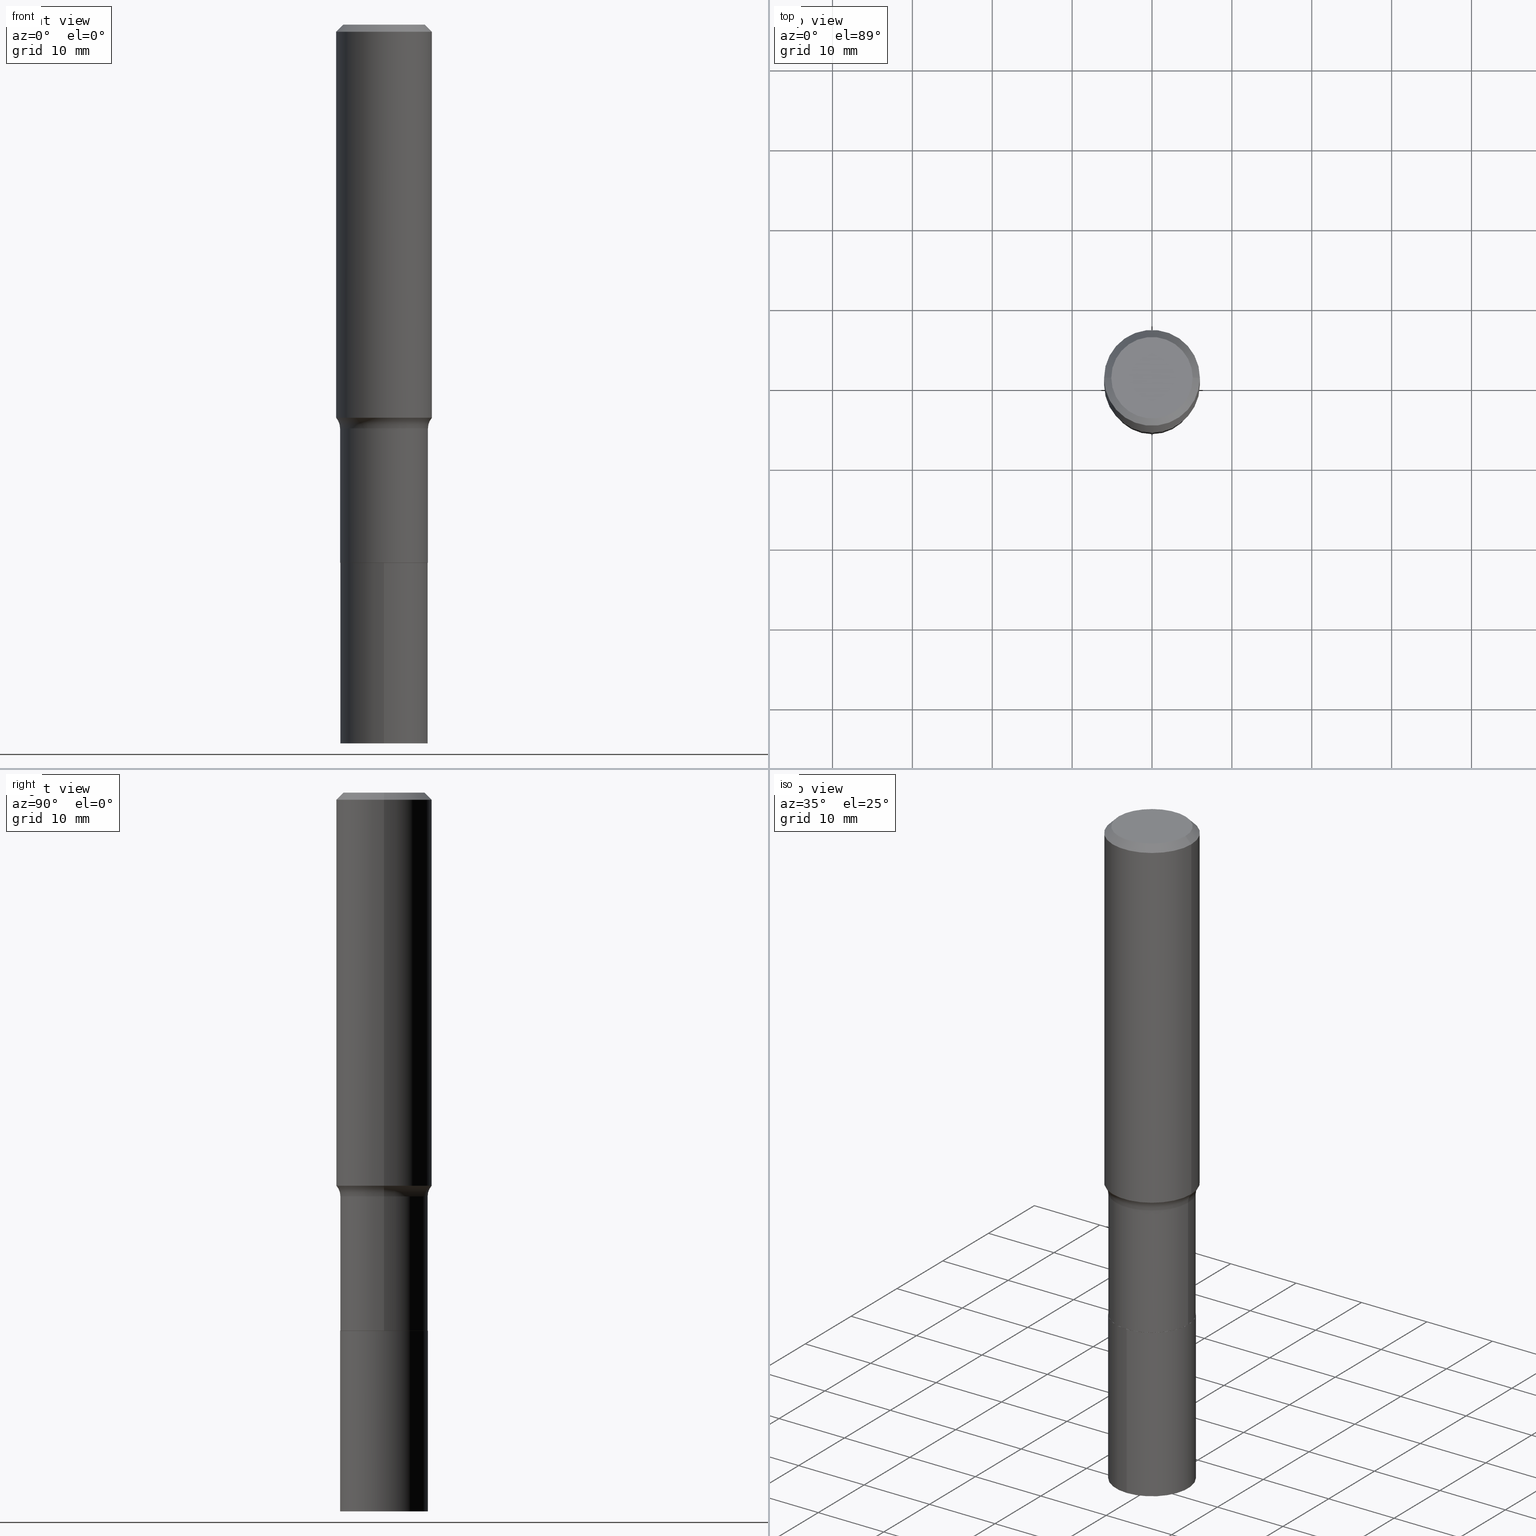
[diagram: canonical four-view strip — front | top / right | iso, engineering-drawing reading convention]
A machine part, canonical four-view strip (front | top / right | iso — engineering-drawing reading convention). The complete STEP part file that produces these views, byte-faithful:
ISO-10303-21;
HEADER;
FILE_DESCRIPTION (( 'STEP AP203' ),
    '1' );
FILE_NAME ('67157.STEP',
    '2024-04-19T16:02:56',
    ( '' ),
    ( '' ),
    'SwSTEP 2.0',
    'SolidWorks 2023',
    '' );
FILE_SCHEMA (( 'CONFIG_CONTROL_DESIGN' ));
ENDSEC;

DATA;
#1 = DIRECTION ( 'NONE',  ( 1.000000000000000000, -6.982962677686266711E-15, 0.000000000000000000 ) ) ;
#2 = AXIS2_PLACEMENT_3D ( 'NONE', #4, #437, #74 ) ;
#3 = EDGE_LOOP ( 'NONE', ( #173, #127, #380, #137 ) ) ;
#4 = CARTESIAN_POINT ( 'NONE',  ( 6.488562383451022229E-29, -9.263947436352516081E-15, -2.653299999999999770 ) ) ;
#5 = ORIENTED_EDGE ( 'NONE', *, *, #284, .T. ) ;
#6 = ORIENTED_EDGE ( 'NONE', *, *, #329, .F. ) ;
#7 = EDGE_CURVE ( 'NONE', #85, #196, #425, .T. ) ;
#8 = CARTESIAN_POINT ( 'NONE',  ( 1.538680294288561586E-15, 0.2165499999999907499, -2.653300000000000214 ) ) ;
#9 = AXIS2_PLACEMENT_3D ( 'NONE', #335, #263, #64 ) ;
#10 = ORIENTED_EDGE ( 'NONE', *, *, #416, .T. ) ;
#11 = DIRECTION ( 'NONE',  ( -2.445468806185136597E-29, 3.491481338843145583E-15, 1.000000000000000000 ) ) ;
#12 = EDGE_LOOP ( 'NONE', ( #88, #283, #280, #40 ) ) ;
#13 = CARTESIAN_POINT ( 'NONE',  ( 6.488562383451022229E-29, -9.263947436352516081E-15, -2.653299999999999770 ) ) ;
#14 = AXIS2_PLACEMENT_3D ( 'NONE', #256, #222, #370 ) ;
#15 = EDGE_CURVE ( 'NONE', #80, #82, #37, .T. ) ;
#16 = ORIENTED_EDGE ( 'NONE', *, *, #172, .T. ) ;
#17 = APPROVAL ( #324, 'UNSPECIFIED' ) ;
#18 = DIRECTION ( 'NONE',  ( -1.000000000000000000, 7.105427357601001859E-15, 0.000000000000000000 ) ) ;
#19 = VERTEX_POINT ( 'NONE', #170 ) ;
#20 = ADVANCED_FACE ( 'NONE', ( #247 ), #93, .T. ) ;
#21 = AXIS2_PLACEMENT_3D ( 'NONE', #332, #150, #24 ) ;
#22 = AXIS2_PLACEMENT_3D ( 'NONE', #266, #228, #132 ) ;
#23 = SECURITY_CLASSIFICATION_LEVEL ( 'unclassified' ) ;
#24 = DIRECTION ( 'NONE',  ( 1.000000000000000000, -6.982962677686266711E-15, 4.876176775795935793E-29 ) ) ;
#25 = DIRECTION ( 'NONE',  ( 2.445468806185136597E-29, -3.491481338843145583E-15, -1.000000000000000000 ) ) ;
#26 = ADVANCED_FACE ( 'NONE', ( #387 ), #177, .F. ) ;
#27 = CARTESIAN_POINT ( 'NONE',  ( -0.2165500000000000203, 1.538680294288497096E-15, -1.065195393794699923E-29 ) ) ;
#28 = VECTOR ( 'NONE', #311, 39.37007874015748143 ) ;
#29 = CC_DESIGN_SECURITY_CLASSIFICATION ( #61, ( #420 ) ) ;
#30 = DIRECTION ( 'NONE',  ( 1.000000000000000000, -6.982962677686268288E-15, 4.883557194083114022E-29 ) ) ;
#31 = CYLINDRICAL_SURFACE ( 'NONE', #371, 0.2165500000000000203 ) ;
#32 = LINE ( 'NONE', #369, #408 ) ;
#33 = CARTESIAN_POINT ( 'NONE',  ( 6.488562383451022229E-29, -9.263947436352516081E-15, -2.653299999999999770 ) ) ;
#34 = DATE_AND_TIME ( #295, #162 ) ;
#35 = DIRECTION ( 'NONE',  ( 1.000000000000000000, -6.982962677686265922E-15, 0.000000000000000000 ) ) ;
#36 = ADVANCED_FACE ( 'NONE', ( #48 ), #382, .T. ) ;
#37 = CIRCLE ( 'NONE', #102, 0.2160500000000000198 ) ;
#38 = AXIS2_PLACEMENT_3D ( 'NONE', #224, #330, #359 ) ;
#39 = LOCAL_TIME ( 12, 2, 56.00000000000000000, #138 ) ;
#40 = ORIENTED_EDGE ( 'NONE', *, *, #348, .F. ) ;
#41 = ORIENTED_EDGE ( 'NONE', *, *, #166, .T. ) ;
#42 = EDGE_CURVE ( 'NONE', #340, #413, #364, .T. ) ;
#43 = ORIENTED_EDGE ( 'NONE', *, *, #166, .F. ) ;
#44 = DATE_AND_TIME ( #277, #323 ) ;
#45 = ORIENTED_EDGE ( 'NONE', *, *, #303, .F. ) ;
#46 = CIRCLE ( 'NONE', #205, 0.2007700000000000040 ) ;
#47 = CARTESIAN_POINT ( 'NONE',  ( 0.2160500000000000198, -1.077261652286663390E-14, -2.653299999999999770 ) ) ;
#48 = FACE_OUTER_BOUND ( 'NONE', #200, .T. ) ;
#49 = EDGE_LOOP ( 'NONE', ( #292, #422, #214, #57 ) ) ;
#50 = EDGE_CURVE ( 'NONE', #82, #209, #257, .T. ) ;
#51 = LENGTH_MEASURE_WITH_UNIT ( LENGTH_MEASURE( 0.02539999999999999897 ), #325 );
#52 = VERTEX_POINT ( 'NONE', #147 ) ;
#53 = VECTOR ( 'NONE', #339, 39.37007874015748143 ) ;
#54 =( CONVERSION_BASED_UNIT ( 'INCH', #51 ) LENGTH_UNIT ( ) NAMED_UNIT ( #76 ) );
#55 = ORIENTED_EDGE ( 'NONE', *, *, #248, .F. ) ;
#56 = PERSON_AND_ORGANIZATION ( #169, #403 ) ;
#57 = ORIENTED_EDGE ( 'NONE', *, *, #254, .F. ) ;
#58 = COORDINATED_UNIVERSAL_TIME_OFFSET ( 5, 0, .BEHIND. ) ;
#59 = CARTESIAN_POINT ( 'NONE',  ( 0.2165500000000000480, -1.077436226353605461E-14, -2.652799999999999603 ) ) ;
#60 = CIRCLE ( 'NONE', #135, 0.2165499999999999647 ) ;
#61 = SECURITY_CLASSIFICATION ( '', '', #23 ) ;
#62 = DIRECTION ( 'NONE',  ( -1.000000000000000000, 6.982962677686265922E-15, -4.876176775795935793E-29 ) ) ;
#63 = DIRECTION ( 'NONE',  ( 1.000000000000000000, -6.982962677686266711E-15, 0.000000000000000000 ) ) ;
#64 = DIRECTION ( 'NONE',  ( 1.000000000000000000, -6.982962677686263555E-15, 0.000000000000000000 ) ) ;
#65 = CC_DESIGN_PERSON_AND_ORGANIZATION_ASSIGNMENT ( #99, #418, ( #420 ) ) ;
#66 = DIRECTION ( 'NONE',  ( 2.438088387897960049E-29, -3.491481338843145188E-15, -1.000000000000000000 ) ) ;
#67 = AXIS2_PLACEMENT_3D ( 'NONE', #227, #186, #148 ) ;
#68 = CIRCLE ( 'NONE', #190, 0.2007700000000000040 ) ;
#69 = FACE_OUTER_BOUND ( 'NONE', #3, .T. ) ;
#70 = CARTESIAN_POINT ( 'NONE',  ( 0.2007700000000000040, -1.560767496960719869E-15, 4.096137381458473721E-18 ) ) ;
#71 = DIRECTION ( 'NONE',  ( 1.000000000000000000, -6.982962677686266711E-15, 4.876176775795935793E-29 ) ) ;
#72 = AXIS2_PLACEMENT_3D ( 'NONE', #252, #354, #415 ) ;
#73 = CIRCLE ( 'NONE', #9, 0.2165500000000000480 ) ;
#74 = DIRECTION ( 'NONE',  ( 6.982962677686265922E-15, 1.000000000000000000, -3.493862711942566670E-15 ) ) ;
#75 = ADVANCED_FACE ( 'NONE', ( #326 ), #358, .T. ) ;
#76 = DIMENSIONAL_EXPONENTS ( 1.000000000000000000, 0.000000000000000000, 0.000000000000000000, 0.000000000000000000, 0.000000000000000000, 0.000000000000000000, 0.000000000000000000 ) ;
#77 = CARTESIAN_POINT ( 'NONE',  ( -1.512160567852874245E-15, -0.2165500000000123715, -3.543299999999999894 ) ) ;
#78 = ORIENTED_EDGE ( 'NONE', *, *, #42, .F. ) ;
#79 = DIRECTION ( 'NONE',  ( -2.438088387897960049E-29, 3.491481338843145188E-15, 1.000000000000000000 ) ) ;
#80 = VERTEX_POINT ( 'NONE', #179 ) ;
#81 = CARTESIAN_POINT ( 'NONE',  ( -0.2362000000000001043, 1.678301941865357380E-15, -1.161852468318209317E-29 ) ) ;
#82 = VERTEX_POINT ( 'NONE', #142 ) ;
#83 = VECTOR ( 'NONE', #404, 39.37007874015748143 ) ;
#84 = EDGE_CURVE ( 'NONE', #82, #80, #89, .T. ) ;
#85 = VERTEX_POINT ( 'NONE', #262 ) ;
#86 = DIRECTION ( 'NONE',  ( -2.445468806185136597E-29, 3.491481338843145583E-15, 1.000000000000000000 ) ) ;
#87 = EDGE_LOOP ( 'NONE', ( #217, #381 ) ) ;
#88 = ORIENTED_EDGE ( 'NONE', *, *, #407, .F. ) ;
#89 = CIRCLE ( 'NONE', #440, 0.2160500000000000198 ) ;
#90 = APPROVAL_PERSON_ORGANIZATION ( #342, #105, #445 ) ;
#91 = EDGE_CURVE ( 'NONE', #85, #236, #243, .T. ) ;
#92 = PERSON_AND_ORGANIZATION ( #169, #403 ) ;
#93 = CYLINDRICAL_SURFACE ( 'NONE', #72, 0.2165500000000000203 ) ;
#94 = PRODUCT_RELATED_PRODUCT_CATEGORY ( 'detail', '', ( #151 ) ) ;
#95 = APPROVAL_ROLE ( '' ) ;
#96 = DIRECTION ( 'NONE',  ( -6.982962677686265922E-15, -1.000000000000000000, 3.493862711942566670E-15 ) ) ;
#97 = DIRECTION ( 'NONE',  ( -6.982962677686265133E-15, -1.000000000000000000, 2.523064413451178124E-15 ) ) ;
#98 =( NAMED_UNIT ( * ) SI_UNIT ( $, .STERADIAN. ) SOLID_ANGLE_UNIT ( ) );
#99 = PERSON_AND_ORGANIZATION ( #169, #403 ) ;
#100 = DIRECTION ( 'NONE',  ( -0.7071067811865451302, 2.468850131082231817E-15, -0.7071067811865499042 ) ) ;
#101 = DIRECTION ( 'NONE',  ( -2.445468806185136877E-29, 3.491481338843145188E-15, 1.000000000000000000 ) ) ;
#102 = AXIS2_PLACEMENT_3D ( 'NONE', #13, #453, #350 ) ;
#103 = CIRCLE ( 'NONE', #343, 0.2165500000000000480 ) ;
#104 = DIRECTION ( 'NONE',  ( -2.445468806185136597E-29, 3.491481338843145583E-15, 1.000000000000000000 ) ) ;
#105 = APPROVAL ( #164, 'UNSPECIFIED' ) ;
#106 = DIRECTION ( 'NONE',  ( 1.000000000000000000, -6.982962677686268288E-15, 4.883557194083114022E-29 ) ) ;
#107 = LINE ( 'NONE', #27, #287 ) ;
#108 = UNCERTAINTY_MEASURE_WITH_UNIT (LENGTH_MEASURE( 1.000000000000000082E-05 ), #54, 'distance_accuracy_value', 'NONE');
#109 = DIRECTION ( 'NONE',  ( -1.000000000000000000, 6.982962677686266711E-15, 0.000000000000000000 ) ) ;
#110 = DIRECTION ( 'NONE',  ( -2.445468806185136597E-29, 3.491481338843145583E-15, 1.000000000000000000 ) ) ;
#111 = DIRECTION ( 'NONE',  ( 2.445468806185136597E-29, -3.491481338843145583E-15, -1.000000000000000000 ) ) ;
#112 = DIRECTION ( 'NONE',  ( 0.7071067811865451302, -7.319954787623248157E-15, -0.7071067811865499042 ) ) ;
#113 = EDGE_CURVE ( 'NONE', #19, #156, #314, .T. ) ;
#114 = VECTOR ( 'NONE', #112, 39.37007874015748143 ) ;
#115 = AXIS2_PLACEMENT_3D ( 'NONE', #174, #356, #317 ) ;
#116 = CARTESIAN_POINT ( 'NONE',  ( 6.488562383451022229E-29, -9.263947436352516081E-15, -2.653299999999999770 ) ) ;
#117 = CC_DESIGN_DATE_AND_TIME_ASSIGNMENT ( #259, #226, ( #61 ) ) ;
#118 = AXIS2_PLACEMENT_3D ( 'NONE', #249, #315, #96 ) ;
#119 = CIRCLE ( 'NONE', #67, 0.2361999999999999933 ) ;
#120 = DIRECTION ( 'NONE',  ( -2.443805902237646551E-29, 3.493862711942566670E-15, 1.000000000000000000 ) ) ;
#121 = ORIENTED_EDGE ( 'NONE', *, *, #430, .T. ) ;
#122 = COORDINATED_UNIVERSAL_TIME_OFFSET ( 5, 0, .BEHIND. ) ;
#123 = CARTESIAN_POINT ( 'NONE',  ( 6.488562383451022229E-29, -9.263947436352516081E-15, -2.653299999999999770 ) ) ;
#124 = DIRECTION ( 'NONE',  ( -2.445468806185136877E-29, 3.491481338843145188E-15, 1.000000000000000000 ) ) ;
#125 = EDGE_LOOP ( 'NONE', ( #409, #310, #316, #312 ) ) ;
#126 = EDGE_CURVE ( 'NONE', #85, #19, #346, .T. ) ;
#127 = ORIENTED_EDGE ( 'NONE', *, *, #131, .F. ) ;
#128 = CIRCLE ( 'NONE', #171, 0.2165499999999999647 ) ;
#129 = CARTESIAN_POINT ( 'NONE',  ( -0.2965499999999999248, -4.841980825802936246E-15, -1.990299999999999736 ) ) ;
#130 = ORIENTED_EDGE ( 'NONE', *, *, #220, .T. ) ;
#131 = EDGE_CURVE ( 'NONE', #322, #374, #46, .T. ) ;
#132 = DIRECTION ( 'NONE',  ( 1.000000000000000000, -6.982962677686266711E-15, 4.876176775795935793E-29 ) ) ;
#133 = DIRECTION ( 'NONE',  ( 7.105427357601001859E-15, 1.000000000000000000, -3.491481338843145583E-15 ) ) ;
#134 = DATE_AND_TIME ( #327, #39 ) ;
#135 = AXIS2_PLACEMENT_3D ( 'NONE', #157, #309, #35 ) ;
#136 = PERSON_AND_ORGANIZATION ( #169, #403 ) ;
#137 = ORIENTED_EDGE ( 'NONE', *, *, #113, .T. ) ;
#138 = COORDINATED_UNIVERSAL_TIME_OFFSET ( 5, 0, .BEHIND. ) ;
#139 = DIRECTION ( 'NONE',  ( -2.445468806185136597E-29, 3.491481338843145583E-15, 1.000000000000000000 ) ) ;
#140 = CC_DESIGN_PERSON_AND_ORGANIZATION_ASSIGNMENT ( #154, #466, ( #391 ) ) ;
#141 = FACE_OUTER_BOUND ( 'NONE', #446, .T. ) ;
#142 = CARTESIAN_POINT ( 'NONE',  ( -0.2160500000000000198, -7.726170628568708682E-15, -2.653299999999999770 ) ) ;
#143 = APPROVAL_DATE_TIME ( #134, #17 ) ;
#144 = CARTESIAN_POINT ( 'NONE',  ( 4.867216564950276881E-29, -6.949095308699512418E-15, -1.990299999999999736 ) ) ;
#145 = CLOSED_SHELL ( 'NONE', ( #199, #26, #75, #436 ) ) ;
#146 = AXIS2_PLACEMENT_3D ( 'NONE', #361, #25, #366 ) ;
#147 = CARTESIAN_POINT ( 'NONE',  ( 0.2165499999999999647, -8.461255876552473241E-15, -1.990299999999999736 ) ) ;
#148 = DIRECTION ( 'NONE',  ( 1.000000000000000000, -6.982962677686266711E-15, 0.000000000000000000 ) ) ;
#149 = DIRECTION ( 'NONE',  ( -6.982962677686265133E-15, -1.000000000000000000, 2.523064413451178124E-15 ) ) ;
#150 = DIRECTION ( 'NONE',  ( -2.445468806185136597E-29, 3.491481338843145583E-15, 1.000000000000000000 ) ) ;
#151 = PRODUCT ( '67157', '67157', '', ( #320 ) ) ;
#152 = FACE_OUTER_BOUND ( 'NONE', #286, .T. ) ;
#153 = DIRECTION ( 'NONE',  ( -2.443805902237646271E-29, 3.493862711942566670E-15, 1.000000000000000000 ) ) ;
#154 = PERSON_AND_ORGANIZATION ( #169, #403 ) ;
#155 = CIRCLE ( 'NONE', #401, 0.2362000000000002153 ) ;
#156 = VERTEX_POINT ( 'NONE', #167 ) ;
#157 = CARTESIAN_POINT ( 'NONE',  ( 4.867216564950276881E-29, -6.949095308699512418E-15, -1.990299999999999736 ) ) ;
#158 = CARTESIAN_POINT ( 'NONE',  ( 4.867216564950276881E-29, -6.949095308699512418E-15, -1.990299999999999736 ) ) ;
#159 = CC_DESIGN_PERSON_AND_ORGANIZATION_ASSIGNMENT ( #331, #180, ( #420 ) ) ;
#160 = EDGE_LOOP ( 'NONE', ( #318, #121 ) ) ;
#161 = FACE_OUTER_BOUND ( 'NONE', #49, .T. ) ;
#162 = LOCAL_TIME ( 12, 2, 56.00000000000000000, #58 ) ;
#163 = DIRECTION ( 'NONE',  ( -6.982962677686265133E-15, -1.000000000000000000, 2.523064413451178124E-15 ) ) ;
#164 = APPROVAL_STATUS ( 'not_yet_approved' ) ;
#165 = EDGE_LOOP ( 'NONE', ( #275, #443, #435, #417 ) ) ;
#166 = EDGE_CURVE ( 'NONE', #80, #198, #377, .T. ) ;
#167 = CARTESIAN_POINT ( 'NONE',  ( 0.2361999999999999933, -1.773078968304709711E-15, -0.03543000000000023908 ) ) ;
#168 = EDGE_LOOP ( 'NONE', ( #240, #246, #385, #10 ) ) ;
#169 = PERSON ( 'UNSPECIFIED', 'UNSPECIFIED', 'UNSPECIFIED', ('UNSPECIFIED'), ('UNSPECIFIED'), ('UNSPECIFIED') ) ;
#170 = CARTESIAN_POINT ( 'NONE',  ( -0.2361999999999999933, -1.766418864270237619E-15, -0.03543000000000023908 ) ) ;
#171 = AXIS2_PLACEMENT_3D ( 'NONE', #429, #296, #225 ) ;
#172 = EDGE_CURVE ( 'NONE', #374, #156, #279, .T. ) ;
#173 = ORIENTED_EDGE ( 'NONE', *, *, #172, .F. ) ;
#174 = CARTESIAN_POINT ( 'NONE',  ( 0.000000000000000000, 0.000000000000000000, 0.000000000000000000 ) ) ;
#175 = ORIENTED_EDGE ( 'NONE', *, *, #423, .F. ) ;
#176 =( NAMED_UNIT ( * ) PLANE_ANGLE_UNIT ( ) SI_UNIT ( $, .RADIAN. ) );
#177 = PLANE ( 'NONE',  #118 ) ;
#178 = AXIS2_PLACEMENT_3D ( 'NONE', #269, #111, #109 ) ;
#179 = CARTESIAN_POINT ( 'NONE',  ( 0.2160500000000000198, -1.077261652286663390E-14, -2.653299999999999770 ) ) ;
#180 = PERSON_AND_ORGANIZATION_ROLE ( 'creator' ) ;
#181 = FACE_OUTER_BOUND ( 'NONE', #168, .T. ) ;
#182 = ADVANCED_FACE ( 'NONE', ( #298 ), #455, .T. ) ;
#183 = CALENDAR_DATE ( 2024, 19, 4 ) ;
#184 = DIRECTION ( 'NONE',  ( -2.443805902237646271E-29, 3.493862711942566670E-15, 1.000000000000000000 ) ) ;
#185 = CARTESIAN_POINT ( 'NONE',  ( 6.488562383451022229E-29, -9.263947436352516081E-15, -2.653299999999999770 ) ) ;
#186 = DIRECTION ( 'NONE',  ( -2.445468806185136597E-29, 3.491481338843145583E-15, 1.000000000000000000 ) ) ;
#187 = FACE_OUTER_BOUND ( 'NONE', #347, .T. ) ;
#188 = AXIS2_PLACEMENT_3D ( 'NONE', #211, #110, #334 ) ;
#189 = AXIS2_PLACEMENT_3D ( 'NONE', #338, #274, #71 ) ;
#190 = AXIS2_PLACEMENT_3D ( 'NONE', #405, #208, #195 ) ;
#191 = EDGE_CURVE ( 'NONE', #209, #196, #107, .T. ) ;
#192 = CYLINDRICAL_SURFACE ( 'NONE', #21, 0.2362000000000001043 ) ;
#193 = DIRECTION ( 'NONE',  ( -0.7071067811864509833, 7.493145998870005484E-15, 0.7071067811866440511 ) ) ;
#194 = CARTESIAN_POINT ( 'NONE',  ( 1.538680294288583674E-15, 0.2165499999999907499, -2.653300000000000214 ) ) ;
#195 = DIRECTION ( 'NONE',  ( 1.000000000000000000, -6.982962677686266711E-15, 4.876140833081945105E-29 ) ) ;
#196 = VERTEX_POINT ( 'NONE', #368 ) ;
#197 = LOCAL_TIME ( 12, 2, 56.00000000000000000, #360 ) ;
#198 = VERTEX_POINT ( 'NONE', #59 ) ;
#199 = ADVANCED_FACE ( 'NONE', ( #187 ), #31, .T. ) ;
#200 = EDGE_LOOP ( 'NONE', ( #414, #447, #41, #450 ) ) ;
#201 = DIRECTION ( 'NONE',  ( -2.443805902237646271E-29, 3.493862711942566670E-15, 1.000000000000000000 ) ) ;
#202 = ORIENTED_EDGE ( 'NONE', *, *, #378, .T. ) ;
#203 = DATE_TIME_ROLE ( 'creation_date' ) ;
#204 = AXIS2_PLACEMENT_3D ( 'NONE', #219, #264, #149 ) ;
#205 = AXIS2_PLACEMENT_3D ( 'NONE', #244, #11, #412 ) ;
#206 = CC_DESIGN_APPROVAL ( #313, ( #391 ) ) ;
#207 = EDGE_CURVE ( 'NONE', #413, #340, #230, .T. ) ;
#208 = DIRECTION ( 'NONE',  ( -2.445468806185136597E-29, 3.491481338843145583E-15, 1.000000000000000000 ) ) ;
#209 = VERTEX_POINT ( 'NONE', #216 ) ;
#210 = DIRECTION ( 'NONE',  ( 1.000000000000000000, -6.982962677686266711E-15, 0.000000000000000000 ) ) ;
#211 = CARTESIAN_POINT ( 'NONE',  ( 6.488562383451022229E-29, -9.263947436352516081E-15, -2.653299999999999770 ) ) ;
#212 = ORIENTED_EDGE ( 'NONE', *, *, #126, .T. ) ;
#213 = CC_DESIGN_PERSON_AND_ORGANIZATION_ASSIGNMENT ( #56, #395, ( #61 ) ) ;
#214 = ORIENTED_EDGE ( 'NONE', *, *, #303, .T. ) ;
#215 = CIRCLE ( 'NONE', #468, 0.08000000000000002942 ) ;
#216 = CARTESIAN_POINT ( 'NONE',  ( -0.2165500000000000480, -6.566968207902806007E-15, -2.652799999999999603 ) ) ;
#217 = ORIENTED_EDGE ( 'NONE', *, *, #423, .T. ) ;
#218 = ORIENTED_EDGE ( 'NONE', *, *, #207, .F. ) ;
#219 = CARTESIAN_POINT ( 'NONE',  ( 8.663549636442529927E-29, -1.237348524998140250E-14, -3.543300000000000338 ) ) ;
#220 = EDGE_CURVE ( 'NONE', #198, #52, #293, .T. ) ;
#221 = AXIS2_PLACEMENT_3D ( 'NONE', #235, #341, #1 ) ;
#222 = DIRECTION ( 'NONE',  ( -2.443805902237646271E-29, 3.493862711942566670E-15, 1.000000000000000000 ) ) ;
#223 =( GEOMETRIC_REPRESENTATION_CONTEXT ( 3 ) GLOBAL_UNCERTAINTY_ASSIGNED_CONTEXT ( ( #108 ) ) GLOBAL_UNIT_ASSIGNED_CONTEXT ( ( #54, #176, #98 ) ) REPRESENTATION_CONTEXT ( 'NONE', 'WORKASPACE' ) );
#224 = CARTESIAN_POINT ( 'NONE',  ( 6.488562383451022229E-29, -9.263947436352516081E-15, -2.653299999999999770 ) ) ;
#225 = DIRECTION ( 'NONE',  ( 1.000000000000000000, -6.982962677686265922E-15, 0.000000000000000000 ) ) ;
#226 = DATE_TIME_ROLE ( 'classification_date' ) ;
#227 = CARTESIAN_POINT ( 'NONE',  ( 8.664295980313996991E-31, -1.237031838352134818E-16, -0.03543000000000023908 ) ) ;
#228 = DIRECTION ( 'NONE',  ( -2.445468806185136597E-29, 3.491481338843145583E-15, 1.000000000000000000 ) ) ;
#229 = DIRECTION ( 'NONE',  ( -2.445468806185136597E-29, 3.491481338843145583E-15, 1.000000000000000000 ) ) ;
#230 = CIRCLE ( 'NONE', #14, 0.2165500000000000203 ) ;
#231 = CARTESIAN_POINT ( 'NONE',  ( -1.512160567852896136E-15, -0.2165500000000092629, -2.653299999999999326 ) ) ;
#232 = APPLICATION_CONTEXT ( 'configuration controlled 3d designs of mechanical parts and assemblies' ) ;
#233 = ADVANCED_FACE ( 'NONE', ( #161 ), #297, .F. ) ;
#234 = EDGE_LOOP ( 'NONE', ( #218, #78 ) ) ;
#235 = CARTESIAN_POINT ( 'NONE',  ( 6.488562383451022229E-29, -9.263947436352516081E-15, -2.653299999999999770 ) ) ;
#236 = VERTEX_POINT ( 'NONE', #238 ) ;
#237 = CARTESIAN_POINT ( 'NONE',  ( 6.488562383451022229E-29, -9.263947436352516081E-15, -2.653299999999999770 ) ) ;
#238 = CARTESIAN_POINT ( 'NONE',  ( 0.2362000000000002431, -8.415114212905475310E-15, -1.937784502287419386 ) ) ;
#239 = EDGE_CURVE ( 'NONE', #209, #198, #103, .T. ) ;
#240 = ORIENTED_EDGE ( 'NONE', *, *, #7, .F. ) ;
#241 = ADVANCED_BREP_SHAPE_REPRESENTATION ( '67157', ( #242, #251, #115 ), #223 ) ;
#242 = MANIFOLD_SOLID_BREP ( 'Body-Move/Copy2[1]', #145 ) ;
#243 = CIRCLE ( 'NONE', #449, 0.2362000000000002153 ) ;
#244 = CARTESIAN_POINT ( 'NONE',  ( -1.001697619218023151E-46, 1.430158722866391908E-32, 4.096137381448114529E-18 ) ) ;
#245 = APPLICATION_CONTEXT ( 'configuration controlled 3d designs of mechanical parts and assemblies' ) ;
#246 = ORIENTED_EDGE ( 'NONE', *, *, #284, .F. ) ;
#247 = FACE_OUTER_BOUND ( 'NONE', #165, .T. ) ;
#248 = EDGE_CURVE ( 'NONE', #236, #156, #32, .T. ) ;
#249 = CARTESIAN_POINT ( 'NONE',  ( 2.422279047712162194E-29, -2.131133996410447613E-14, -3.543300000000000338 ) ) ;
#250 = AXIS2_PLACEMENT_3D ( 'NONE', #144, #461, #30 ) ;
#251 = MANIFOLD_SOLID_BREP ( 'Body-Move/Copy2[2]', #448 ) ;
#252 = CARTESIAN_POINT ( 'NONE',  ( 0.000000000000000000, 0.000000000000000000, 0.000000000000000000 ) ) ;
#253 = PERSON_AND_ORGANIZATION ( #169, #403 ) ;
#254 = EDGE_CURVE ( 'NONE', #236, #52, #215, .T. ) ;
#255 = ORIENTED_EDGE ( 'NONE', *, *, #84, .F. ) ;
#256 = CARTESIAN_POINT ( 'NONE',  ( 8.663549636442529927E-29, -1.237348524998140250E-14, -3.543300000000000338 ) ) ;
#257 = LINE ( 'NONE', #400, #454 ) ;
#258 = AXIS2_PLACEMENT_3D ( 'NONE', #129, #133, #18 ) ;
#259 = DATE_AND_TIME ( #183, #197 ) ;
#260 = PLANE ( 'NONE',  #321 ) ;
#261 = CYLINDRICAL_SURFACE ( 'NONE', #22, 0.2165500000000000203 ) ;
#262 = CARTESIAN_POINT ( 'NONE',  ( -0.2362000000000002431, -5.087436486570619235E-15, -1.937784502287419386 ) ) ;
#263 = DIRECTION ( 'NONE',  ( -2.445468806185136597E-29, 3.491481338843145583E-15, 1.000000000000000000 ) ) ;
#264 = DIRECTION ( 'NONE',  ( -2.443805902237646271E-29, 3.493862711942566670E-15, 1.000000000000000000 ) ) ;
#265 = DIRECTION ( 'NONE',  ( 1.000000000000000000, -6.982962677686257244E-15, 0.000000000000000000 ) ) ;
#266 = CARTESIAN_POINT ( 'NONE',  ( 0.000000000000000000, 0.000000000000000000, 0.000000000000000000 ) ) ;
#267 = CARTESIAN_POINT ( 'NONE',  ( -0.2361999999999999933, 1.525672600634282550E-15, -0.03543000000000023908 ) ) ;
#268 = VECTOR ( 'NONE', #124, 39.37007874015748143 ) ;
#269 = CARTESIAN_POINT ( 'NONE',  ( 8.664295980313996991E-31, -1.237031838352134818E-16, -0.03543000000000023908 ) ) ;
#270 = CC_DESIGN_PERSON_AND_ORGANIZATION_ASSIGNMENT ( #92, #456, ( #151 ) ) ;
#271 = PLANE ( 'NONE',  #2 ) ;
#272 = ORIENTED_EDGE ( 'NONE', *, *, #430, .F. ) ;
#273 = DIRECTION ( 'NONE',  ( -2.445468806185136597E-29, 3.491481338843145583E-15, 1.000000000000000000 ) ) ;
#274 = DIRECTION ( 'NONE',  ( -2.445468806185136597E-29, 3.491481338843145583E-15, 1.000000000000000000 ) ) ;
#275 = ORIENTED_EDGE ( 'NONE', *, *, #367, .T. ) ;
#276 = ADVANCED_FACE ( 'NONE', ( #300 ), #260, .F. ) ;
#277 = CALENDAR_DATE ( 2024, 19, 4 ) ;
#278 = EDGE_LOOP ( 'NONE', ( #5, #212, #439, #55 ) ) ;
#279 = LINE ( 'NONE', #333, #114 ) ;
#280 = ORIENTED_EDGE ( 'NONE', *, *, #351, .T. ) ;
#281 = CONICAL_SURFACE ( 'NONE', #221, 0.2160500000000000198, 0.7853981633973118326 ) ;
#282 = APPROVAL_PERSON_ORGANIZATION ( #136, #313, #95 ) ;
#283 = ORIENTED_EDGE ( 'NONE', *, *, #42, .T. ) ;
#284 = EDGE_CURVE ( 'NONE', #236, #85, #155, .T. ) ;
#285 = ORIENTED_EDGE ( 'NONE', *, *, #367, .F. ) ;
#286 = EDGE_LOOP ( 'NONE', ( #421, #410, #285, #43 ) ) ;
#287 = VECTOR ( 'NONE', #101, 39.37007874015748143 ) ;
#288 = VERTEX_POINT ( 'NONE', #301 ) ;
#289 = COORDINATED_UNIVERSAL_TIME_OFFSET ( 5, 0, .BEHIND. ) ;
#290 = ADVANCED_FACE ( 'NONE', ( #181 ), #376, .F. ) ;
#291 = APPROVAL_STATUS ( 'not_yet_approved' ) ;
#292 = ORIENTED_EDGE ( 'NONE', *, *, #91, .F. ) ;
#293 = LINE ( 'NONE', #462, #53 ) ;
#294 = CARTESIAN_POINT ( 'NONE',  ( 0.2965499999999999248, -9.019892890767373316E-15, -1.990299999999999736 ) ) ;
#295 = CALENDAR_DATE ( 2024, 19, 4 ) ;
#296 = DIRECTION ( 'NONE',  ( -2.445468806185136597E-29, 3.491481338843145583E-15, 1.000000000000000000 ) ) ;
#297 = TOROIDAL_SURFACE ( 'NONE', #426, 0.2965499999999999248, 0.08000000000000001554 ) ;
#298 = FACE_OUTER_BOUND ( 'NONE', #336, .T. ) ;
#299 = CARTESIAN_POINT ( 'NONE',  ( 6.487339649047929428E-29, -9.262201695683093788E-15, -2.652799999999999603 ) ) ;
#300 = FACE_OUTER_BOUND ( 'NONE', #160, .T. ) ;
#301 = CARTESIAN_POINT ( 'NONE',  ( -1.512160567852896136E-15, -0.2165500000000092629, -2.653299999999999326 ) ) ;
#302 = CIRCLE ( 'NONE', #419, 0.2165500000000000203 ) ;
#303 = EDGE_CURVE ( 'NONE', #196, #52, #128, .T. ) ;
#304 = PRODUCT_DEFINITION_SHAPE ( 'NONE', 'NONE',  #391 ) ;
#305 = CYLINDRICAL_SURFACE ( 'NONE', #189, 0.2362000000000001043 ) ;
#306 = FACE_OUTER_BOUND ( 'NONE', #87, .T. ) ;
#307 = ADVANCED_FACE ( 'NONE', ( #69 ), #357, .T. ) ;
#308 = FACE_OUTER_BOUND ( 'NONE', #349, .T. ) ;
#309 = DIRECTION ( 'NONE',  ( -2.445468806185136597E-29, 3.491481338843145583E-15, 1.000000000000000000 ) ) ;
#310 = ORIENTED_EDGE ( 'NONE', *, *, #91, .T. ) ;
#311 = DIRECTION ( 'NONE',  ( 0.7071067811864509833, -2.468850131081245741E-15, 0.7071067811866440511 ) ) ;
#312 = ORIENTED_EDGE ( 'NONE', *, *, #113, .F. ) ;
#313 = APPROVAL ( #291, 'UNSPECIFIED' ) ;
#314 = CIRCLE ( 'NONE', #441, 0.2361999999999999933 ) ;
#315 = DIRECTION ( 'NONE',  ( -2.443805902237645991E-29, 3.493862711942566670E-15, 1.000000000000000000 ) ) ;
#316 = ORIENTED_EDGE ( 'NONE', *, *, #248, .T. ) ;
#317 = DIRECTION ( 'NONE',  ( 1.000000000000000000, 0.000000000000000000, 0.000000000000000000 ) ) ;
#318 = ORIENTED_EDGE ( 'NONE', *, *, #131, .T. ) ;
#319 = ADVANCED_FACE ( 'NONE', ( #424 ), #192, .T. ) ;
#320 = MECHANICAL_CONTEXT ( 'NONE', #245, 'mechanical' ) ;
#321 = AXIS2_PLACEMENT_3D ( 'NONE', #392, #66, #62 ) ;
#322 = VERTEX_POINT ( 'NONE', #433 ) ;
#323 = LOCAL_TIME ( 12, 2, 56.00000000000000000, #122 ) ;
#324 = APPROVAL_STATUS ( 'not_yet_approved' ) ;
#325 =( LENGTH_UNIT ( ) NAMED_UNIT ( * ) SI_UNIT ( $, .METRE. ) );
#326 = FACE_OUTER_BOUND ( 'NONE', #12, .T. ) ;
#327 = CALENDAR_DATE ( 2024, 19, 4 ) ;
#328 = APPROVAL_ROLE ( '' ) ;
#329 = EDGE_CURVE ( 'NONE', #322, #19, #363, .T. ) ;
#330 = DIRECTION ( 'NONE',  ( -2.443805902237646271E-29, 3.493862711942566670E-15, 1.000000000000000000 ) ) ;
#331 = PERSON_AND_ORGANIZATION ( #169, #403 ) ;
#332 = CARTESIAN_POINT ( 'NONE',  ( 0.000000000000000000, 0.000000000000000000, 0.000000000000000000 ) ) ;
#333 = CARTESIAN_POINT ( 'NONE',  ( 0.2361999999999999933, -1.744152810908849251E-15, -0.03543000000000023908 ) ) ;
#334 = DIRECTION ( 'NONE',  ( 1.000000000000000000, -6.982962677686266711E-15, 0.000000000000000000 ) ) ;
#335 = CARTESIAN_POINT ( 'NONE',  ( 6.487339649047929428E-29, -9.262201695683093788E-15, -2.652799999999999603 ) ) ;
#336 = EDGE_LOOP ( 'NONE', ( #272, #16, #202, #6 ) ) ;
#337 = CIRCLE ( 'NONE', #389, 0.2165500000000000203 ) ;
#338 = CARTESIAN_POINT ( 'NONE',  ( 0.000000000000000000, 0.000000000000000000, 0.000000000000000000 ) ) ;
#339 = DIRECTION ( 'NONE',  ( -2.445468806185136877E-29, 3.491481338843145188E-15, 1.000000000000000000 ) ) ;
#340 = VERTEX_POINT ( 'NONE', #431 ) ;
#341 = DIRECTION ( 'NONE',  ( -2.445468806185136597E-29, 3.491481338843145583E-15, 1.000000000000000000 ) ) ;
#342 = PERSON_AND_ORGANIZATION ( #169, #403 ) ;
#343 = AXIS2_PLACEMENT_3D ( 'NONE', #299, #139, #402 ) ;
#344 = AXIS2_PLACEMENT_3D ( 'NONE', #123, #79, #345 ) ;
#345 = DIRECTION ( 'NONE',  ( 1.000000000000000000, -6.982962677686265922E-15, 4.876176775795935793E-29 ) ) ;
#346 = LINE ( 'NONE', #81, #268 ) ;
#347 = EDGE_LOOP ( 'NONE', ( #451, #458, #175, #373 ) ) ;
#348 = EDGE_CURVE ( 'NONE', #352, #288, #302, .T. ) ;
#349 = EDGE_LOOP ( 'NONE', ( #379, #255 ) ) ;
#350 = DIRECTION ( 'NONE',  ( 1.000000000000000000, -6.982962677686266711E-15, 0.000000000000000000 ) ) ;
#351 = EDGE_CURVE ( 'NONE', #413, #288, #427, .T. ) ;
#352 = VERTEX_POINT ( 'NONE', #194 ) ;
#353 = SHAPE_DEFINITION_REPRESENTATION ( #304, #241 ) ;
#354 = DIRECTION ( 'NONE',  ( -2.445468806185136597E-29, 3.491481338843145583E-15, 1.000000000000000000 ) ) ;
#355 = DATE_AND_TIME ( #463, #390 ) ;
#356 = DIRECTION ( 'NONE',  ( 0.000000000000000000, 0.000000000000000000, 1.000000000000000000 ) ) ;
#357 = CONICAL_SURFACE ( 'NONE', #178, 0.2361999999999999933, 0.7853981633974449483 ) ;
#358 = CYLINDRICAL_SURFACE ( 'NONE', #38, 0.2165500000000000203 ) ;
#359 = DIRECTION ( 'NONE',  ( -6.982962677686265133E-15, -1.000000000000000000, 2.523064413451178124E-15 ) ) ;
#360 = COORDINATED_UNIVERSAL_TIME_OFFSET ( 5, 0, .BEHIND. ) ;
#361 = CARTESIAN_POINT ( 'NONE',  ( 8.664295980313996991E-31, -1.237031838352134818E-16, -0.03543000000000023908 ) ) ;
#362 = CC_DESIGN_DATE_AND_TIME_ASSIGNMENT ( #44, #203, ( #391 ) ) ;
#363 = LINE ( 'NONE', #267, #432 ) ;
#364 = CIRCLE ( 'NONE', #204, 0.2165500000000000203 ) ;
#365 = DIRECTION ( 'NONE',  ( 1.000000000000000000, -6.982962677686266711E-15, 0.000000000000000000 ) ) ;
#366 = DIRECTION ( 'NONE',  ( -1.000000000000000000, 6.982962677686266711E-15, 0.000000000000000000 ) ) ;
#367 = EDGE_CURVE ( 'NONE', #198, #209, #73, .T. ) ;
#368 = CARTESIAN_POINT ( 'NONE',  ( -0.2165499999999999647, -6.566968207902806007E-15, -1.990299999999999736 ) ) ;
#369 = CARTESIAN_POINT ( 'NONE',  ( 0.2362000000000001043, -1.649375784469496920E-15, 1.151752954443000508E-29 ) ) ;
#370 = DIRECTION ( 'NONE',  ( -6.982962677686265133E-15, -1.000000000000000000, 2.523064413451178124E-15 ) ) ;
#371 = AXIS2_PLACEMENT_3D ( 'NONE', #33, #153, #97 ) ;
#372 = APPROVAL_PERSON_ORGANIZATION ( #253, #17, #328 ) ;
#373 = ORIENTED_EDGE ( 'NONE', *, *, #351, .F. ) ;
#374 = VERTEX_POINT ( 'NONE', #70 ) ;
#375 = LINE ( 'NONE', #8, #383 ) ;
#376 = TOROIDAL_SURFACE ( 'NONE', #250, 0.2965499999999999248, 0.08000000000000001554 ) ;
#377 = LINE ( 'NONE', #47, #28 ) ;
#378 = EDGE_CURVE ( 'NONE', #156, #19, #119, .T. ) ;
#379 = ORIENTED_EDGE ( 'NONE', *, *, #15, .F. ) ;
#380 = ORIENTED_EDGE ( 'NONE', *, *, #329, .T. ) ;
#381 = ORIENTED_EDGE ( 'NONE', *, *, #348, .T. ) ;
#382 = CONICAL_SURFACE ( 'NONE', #188, 0.2160500000000000198, 0.7853981633973118326 ) ;
#383 = VECTOR ( 'NONE', #120, 39.37007874015748143 ) ;
#384 = CC_DESIGN_APPROVAL ( #105, ( #420 ) ) ;
#385 = ORIENTED_EDGE ( 'NONE', *, *, #254, .T. ) ;
#386 = APPLICATION_PROTOCOL_DEFINITION ( 'international standard', 'config_control_design', 1994, #232 ) ;
#387 = FACE_OUTER_BOUND ( 'NONE', #234, .T. ) ;
#388 = APPROVAL_DATE_TIME ( #355, #105 ) ;
#389 = AXIS2_PLACEMENT_3D ( 'NONE', #237, #201, #163 ) ;
#390 = LOCAL_TIME ( 12, 2, 56.00000000000000000, #289 ) ;
#391 = PRODUCT_DEFINITION ( 'UNKNOWN', '', #420, #459 ) ;
#392 = CARTESIAN_POINT ( 'NONE',  ( -5.008488096090115757E-47, 7.150793614331959538E-33, 2.048068690724057264E-18 ) ) ;
#393 = APPROVAL_DATE_TIME ( #34, #313 ) ;
#394 = DIRECTION ( 'NONE',  ( -2.445468806185136597E-29, 3.491481338843145583E-15, 1.000000000000000000 ) ) ;
#395 = PERSON_AND_ORGANIZATION_ROLE ( 'classification_officer' ) ;
#396 = DIRECTION ( 'NONE',  ( -2.445468806185136877E-29, 3.491481338843145188E-15, 1.000000000000000000 ) ) ;
#397 = CARTESIAN_POINT ( 'NONE',  ( 8.664295980313996991E-31, -1.237031838352134818E-16, -0.03543000000000023908 ) ) ;
#398 = DIRECTION ( 'NONE',  ( -6.982962677686266711E-15, -1.000000000000000000, 3.491481338843145583E-15 ) ) ;
#399 = ADVANCED_FACE ( 'NONE', ( #152 ), #281, .T. ) ;
#400 = CARTESIAN_POINT ( 'NONE',  ( -0.2160500000000000198, -7.728819855742820672E-15, -2.653299999999999770 ) ) ;
#401 = AXIS2_PLACEMENT_3D ( 'NONE', #467, #229, #365 ) ;
#402 = DIRECTION ( 'NONE',  ( 1.000000000000000000, -6.982962677686263555E-15, 0.000000000000000000 ) ) ;
#403 = ORGANIZATION ( 'UNSPECIFIED', 'UNSPECIFIED', '' ) ;
#404 = DIRECTION ( 'NONE',  ( -2.443805902237646551E-29, 3.493862711942566670E-15, 1.000000000000000000 ) ) ;
#405 = CARTESIAN_POINT ( 'NONE',  ( -1.001697619218023151E-46, 1.430158722866391908E-32, 4.096137381448114529E-18 ) ) ;
#406 = ORIENTED_EDGE ( 'NONE', *, *, #191, .F. ) ;
#407 = EDGE_CURVE ( 'NONE', #340, #352, #375, .T. ) ;
#408 = VECTOR ( 'NONE', #396, 39.37007874015748143 ) ;
#409 = ORIENTED_EDGE ( 'NONE', *, *, #126, .F. ) ;
#410 = ORIENTED_EDGE ( 'NONE', *, *, #50, .T. ) ;
#411 = ADVANCED_FACE ( 'NONE', ( #434 ), #305, .T. ) ;
#412 = DIRECTION ( 'NONE',  ( 1.000000000000000000, -6.982962677686266711E-15, 4.876140833081945105E-29 ) ) ;
#413 = VERTEX_POINT ( 'NONE', #77 ) ;
#414 = ORIENTED_EDGE ( 'NONE', *, *, #50, .F. ) ;
#415 = DIRECTION ( 'NONE',  ( 1.000000000000000000, -6.982962677686266711E-15, 4.876176775795935793E-29 ) ) ;
#416 = EDGE_CURVE ( 'NONE', #52, #196, #60, .T. ) ;
#417 = ORIENTED_EDGE ( 'NONE', *, *, #220, .F. ) ;
#418 = PERSON_AND_ORGANIZATION_ROLE ( 'design_supplier' ) ;
#419 = AXIS2_PLACEMENT_3D ( 'NONE', #116, #184, #464 ) ;
#420 = PRODUCT_DEFINITION_FORMATION_WITH_SPECIFIED_SOURCE ( 'ANY', '', #151, .NOT_KNOWN. ) ;
#421 = ORIENTED_EDGE ( 'NONE', *, *, #15, .T. ) ;
#422 = ORIENTED_EDGE ( 'NONE', *, *, #7, .T. ) ;
#423 = EDGE_CURVE ( 'NONE', #288, #352, #337, .T. ) ;
#424 = FACE_OUTER_BOUND ( 'NONE', #278, .T. ) ;
#425 = CIRCLE ( 'NONE', #258, 0.08000000000000002942 ) ;
#426 = AXIS2_PLACEMENT_3D ( 'NONE', #158, #86, #106 ) ;
#427 = LINE ( 'NONE', #231, #83 ) ;
#428 = CARTESIAN_POINT ( 'NONE',  ( 4.738791553452874442E-29, -6.765738428435977207E-15, -1.937784502287419386 ) ) ;
#429 = CARTESIAN_POINT ( 'NONE',  ( 4.867216564950276881E-29, -6.949095308699512418E-15, -1.990299999999999736 ) ) ;
#430 = EDGE_CURVE ( 'NONE', #374, #322, #68, .T. ) ;
#431 = CARTESIAN_POINT ( 'NONE',  ( 1.538680294288572433E-15, 0.2165499999999876413, -3.543300000000000782 ) ) ;
#432 = VECTOR ( 'NONE', #100, 39.37007874015748143 ) ;
#433 = CARTESIAN_POINT ( 'NONE',  ( -0.2007700000000000040, 1.463821008716676943E-15, 4.096137381438094301E-18 ) ) ;
#434 = FACE_OUTER_BOUND ( 'NONE', #125, .T. ) ;
#435 = ORIENTED_EDGE ( 'NONE', *, *, #416, .F. ) ;
#436 = ADVANCED_FACE ( 'NONE', ( #306 ), #271, .F. ) ;
#437 = DIRECTION ( 'NONE',  ( 2.443805902237645991E-29, -3.493862711942566670E-15, -1.000000000000000000 ) ) ;
#438 = ORIENTED_EDGE ( 'NONE', *, *, #239, .T. ) ;
#439 = ORIENTED_EDGE ( 'NONE', *, *, #378, .F. ) ;
#440 = AXIS2_PLACEMENT_3D ( 'NONE', #185, #104, #460 ) ;
#441 = AXIS2_PLACEMENT_3D ( 'NONE', #397, #273, #210 ) ;
#442 = PLANE ( 'NONE',  #344 ) ;
#443 = ORIENTED_EDGE ( 'NONE', *, *, #191, .T. ) ;
#444 = ADVANCED_FACE ( 'NONE', ( #308 ), #442, .F. ) ;
#445 = APPROVAL_ROLE ( '' ) ;
#446 = EDGE_LOOP ( 'NONE', ( #406, #438, #130, #45 ) ) ;
#447 = ORIENTED_EDGE ( 'NONE', *, *, #84, .T. ) ;
#448 = CLOSED_SHELL ( 'NONE', ( #399, #182, #319, #233, #20, #465, #290, #411, #307, #276, #444, #36 ) ) ;
#449 = AXIS2_PLACEMENT_3D ( 'NONE', #428, #394, #63 ) ;
#450 = ORIENTED_EDGE ( 'NONE', *, *, #239, .F. ) ;
#451 = ORIENTED_EDGE ( 'NONE', *, *, #207, .T. ) ;
#452 = APPLICATION_PROTOCOL_DEFINITION ( 'international standard', 'config_control_design', 1994, #245 ) ;
#453 = DIRECTION ( 'NONE',  ( -2.445468806185136597E-29, 3.491481338843145583E-15, 1.000000000000000000 ) ) ;
#454 = VECTOR ( 'NONE', #193, 39.37007874015748143 ) ;
#455 = CONICAL_SURFACE ( 'NONE', #146, 0.2361999999999999933, 0.7853981633974449483 ) ;
#456 = PERSON_AND_ORGANIZATION_ROLE ( 'design_owner' ) ;
#457 = CC_DESIGN_APPROVAL ( #17, ( #61 ) ) ;
#458 = ORIENTED_EDGE ( 'NONE', *, *, #407, .T. ) ;
#459 = DESIGN_CONTEXT ( 'detailed design', #232, 'design' ) ;
#460 = DIRECTION ( 'NONE',  ( 1.000000000000000000, -6.982962677686266711E-15, 0.000000000000000000 ) ) ;
#461 = DIRECTION ( 'NONE',  ( -2.445468806185136597E-29, 3.491481338843145583E-15, 1.000000000000000000 ) ) ;
#462 = CARTESIAN_POINT ( 'NONE',  ( 0.2165500000000000203, -1.512160567852961217E-15, 1.055936080798610036E-29 ) ) ;
#463 = CALENDAR_DATE ( 2024, 19, 4 ) ;
#464 = DIRECTION ( 'NONE',  ( -6.982962677686265133E-15, -1.000000000000000000, 2.523064413451178124E-15 ) ) ;
#465 = ADVANCED_FACE ( 'NONE', ( #141 ), #261, .T. ) ;
#466 = PERSON_AND_ORGANIZATION_ROLE ( 'creator' ) ;
#467 = CARTESIAN_POINT ( 'NONE',  ( 4.738791553452874442E-29, -6.765738428435977207E-15, -1.937784502287419386 ) ) ;
#468 = AXIS2_PLACEMENT_3D ( 'NONE', #294, #398, #265 ) ;
ENDSEC;
END-ISO-10303-21;
